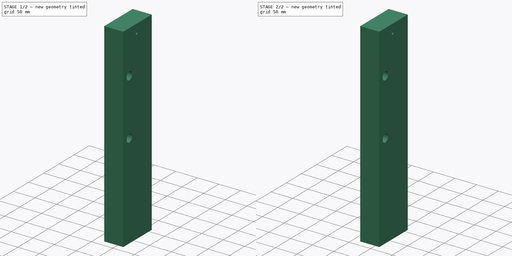
[diagram: build sequence overview — one tinted view per stage of 2, left to right]
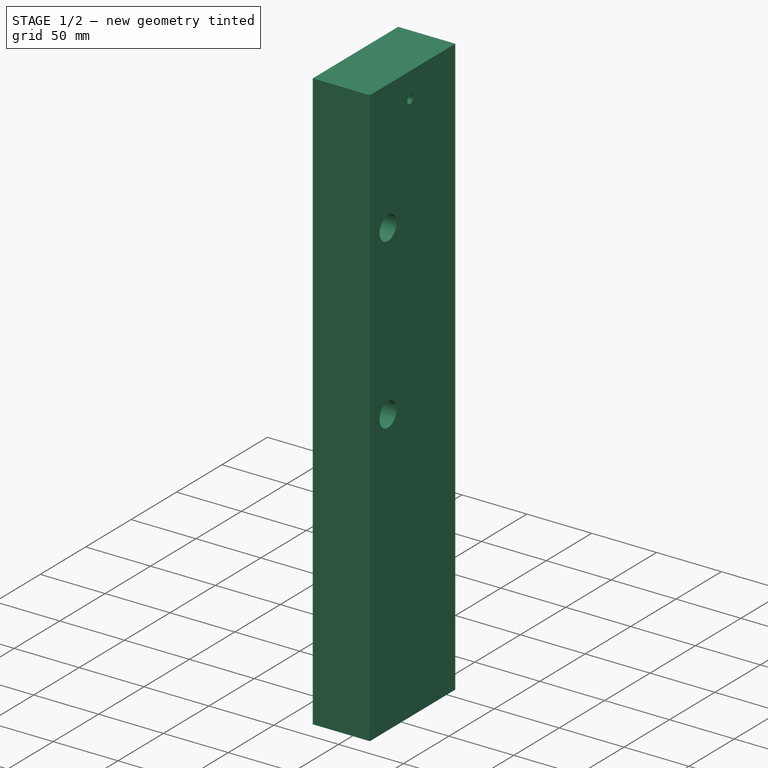
[diagram: stage 1 of 2 — iso view after this stage's code; geometry added in this stage tinted green]
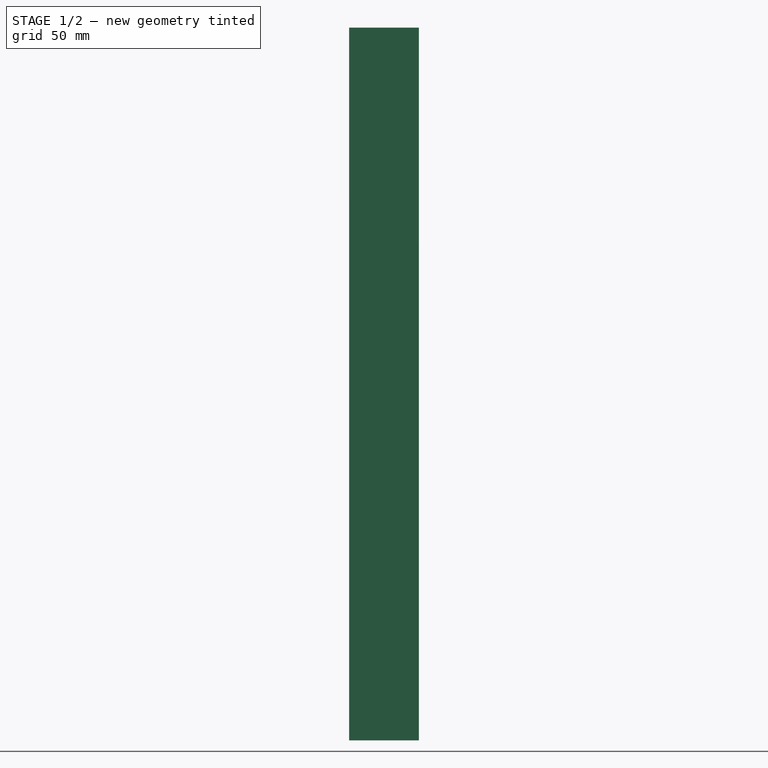
[diagram: stage 1 of 2 — front view after this stage's code; geometry added in this stage tinted green]
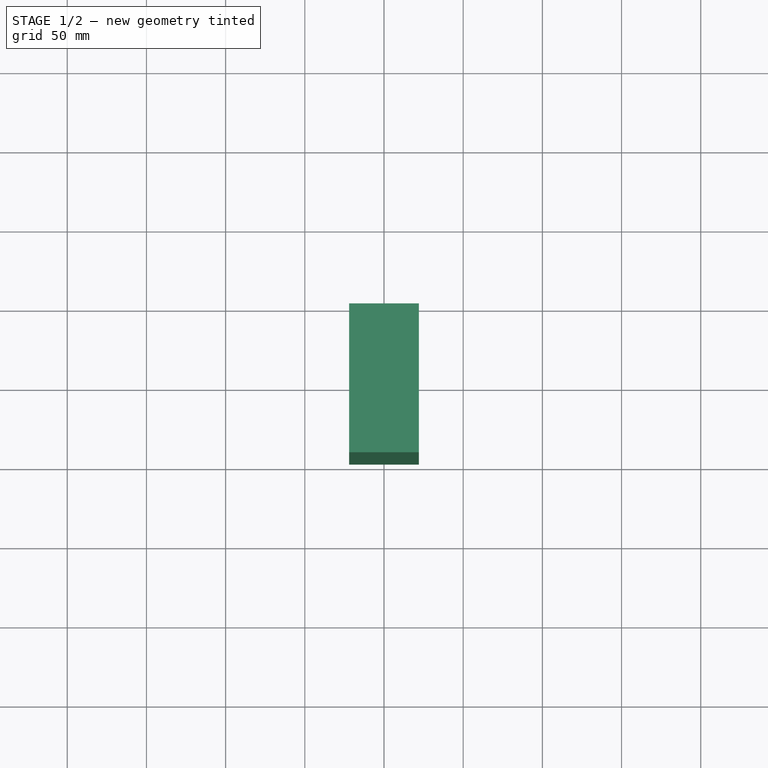
[diagram: stage 1 of 2 — top view after this stage's code; geometry added in this stage tinted green]
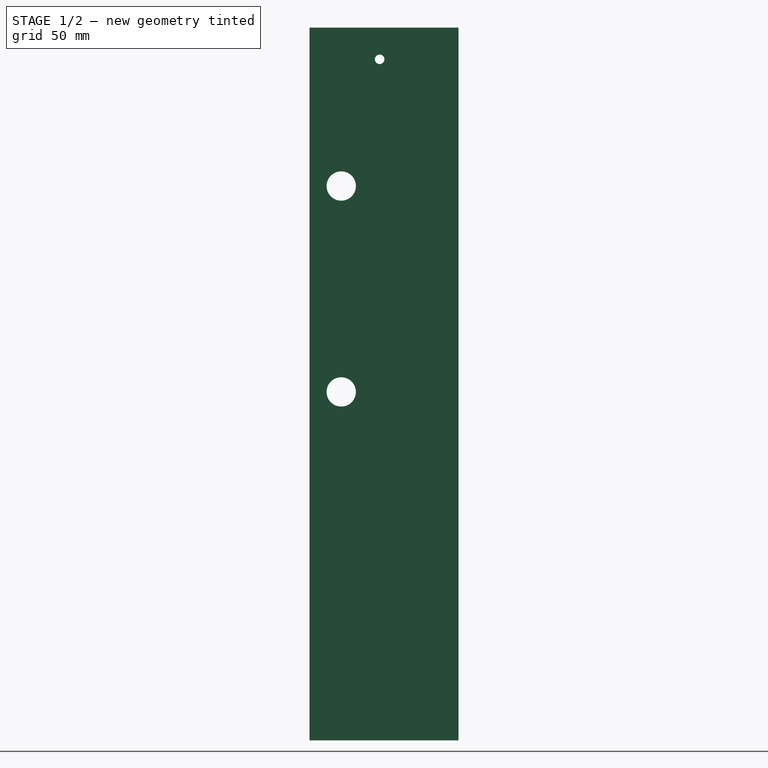
[diagram: stage 1 of 2 — right view after this stage's code; geometry added in this stage tinted green]
FCSTD DOCUMENT  (FreeCAD 0.19R18028 (Git))
Label: upper-stage-beam
License: Public Domain
LicenseURL: http://en.wikipedia.org/wiki/Public_domain
objects: Part::FeaturePython×17, App::FeaturePython×4, Sketcher::SketchObject×3, PartDesign::Pocket×2, PartDesign::Pad×1, PartDesign::Body×1, Part::Mirroring×1
note: 26 computed .brp shape members not serialized (recipe doc carries the construction recipe); baked Part::Feature solids carry a one-line shape summary decoded from their .brp

FEATURE [Sketcher::SketchObject] Sketch
  MapMode = 5
  Support = -> [XY_Plane]
  sketch-geometry (4):
    g0: LineSegment StartX=-22 StartY=-47 StartZ=0 EndX=22 EndY=-47 EndZ=0
    g1: LineSegment StartX=22 StartY=-47 StartZ=0 EndX=22 EndY=47 EndZ=0
    g2: LineSegment StartX=22 StartY=47 StartZ=0 EndX=-22 EndY=47 EndZ=0
    g3: LineSegment StartX=-22 StartY=47 StartZ=0 EndX=-22 EndY=-47 EndZ=0
  constraints (10):
    c: Coincident(g0,g1)
    c: Coincident(g1,g2)
    c: Coincident(g2,g3)
    c: Horizontal(g2)
    c: Vertical(g3)
    c: Distance(g0) = 44
    c: Distance(g1) = 94
    c: Symmetric(g0,g0,g-2)
    c: Coincident(g3,g0)
    c: Symmetric(g0,g1,g-1)
FEATURE [PartDesign::Pad] Pad
  ClaimChildren = false
  Length = 450
  Length2 = 100
  Profile = -> Sketch
  Type = 0
FEATURE [Sketcher::SketchObject] Sketch001
  ExternalGeometry = -> [Pad]
  MapMode = 5
  Placement = pos=(22,0,0) rot=(0.57735,0.57735,0.57735;2.0944rad)
  Support = -> [Pad]
  expr: Constraints[6] = 15 + 18.5 / 2
  sketch-geometry (3):
    g0: Circle CenterX=-27 CenterY=350 CenterZ=0 NormalX=0 NormalY=0 NormalZ=1 AngleXU=0 Radius=9.25
    g1: Circle CenterX=-27 CenterY=220 CenterZ=0 NormalX=0 NormalY=0 NormalZ=1 AngleXU=0 Radius=9.25
    g2: Circle CenterX=-2.75 CenterY=430 CenterZ=0 NormalX=0 NormalY=0 NormalZ=1 AngleXU=0 Radius=3
  constraints (9):
    c: Equal(g1,g0)
    c: Diameter(g0) = 18.5
    c: Vertical(g0,g1)
    c: DistanceY(g1,g0) = 130
    c: DistanceX(g-3,g0) = 20
    c: DistanceY(g0,g-3) = 100
    c: DistanceX(g0,g2) = 24.25
    c: DistanceY(g2,g-3) = 20
    c: Diameter(g2) = 6
FEATURE [PartDesign::Pocket] Pocket
  BaseFeature = -> Pad
  ClaimChildren = false
  Length = 5
  Length2 = 100
  Profile = -> Sketch001
  Type = 1
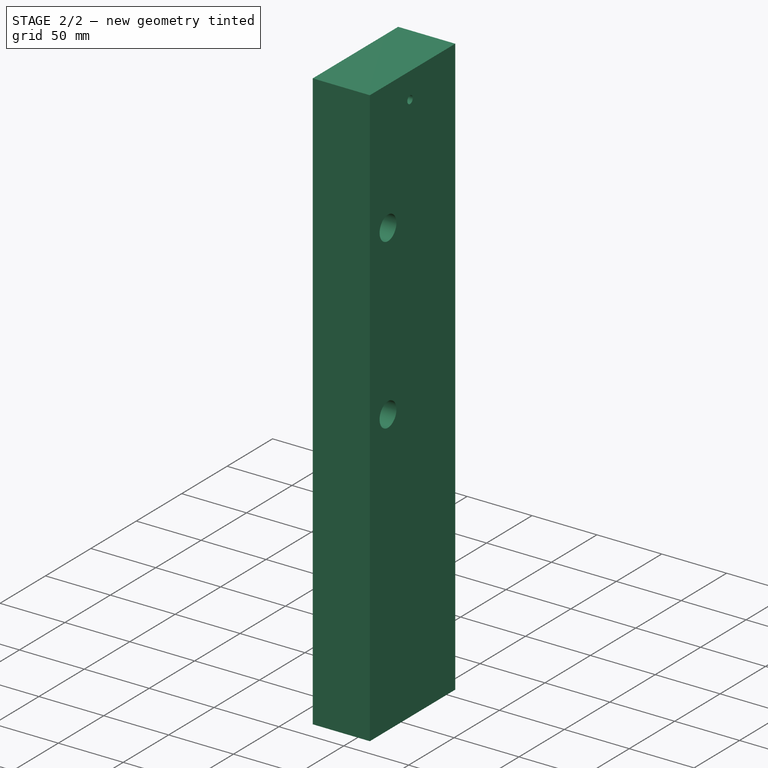
[diagram: stage 2 of 2 — iso view after this stage's code; geometry added in this stage tinted green]
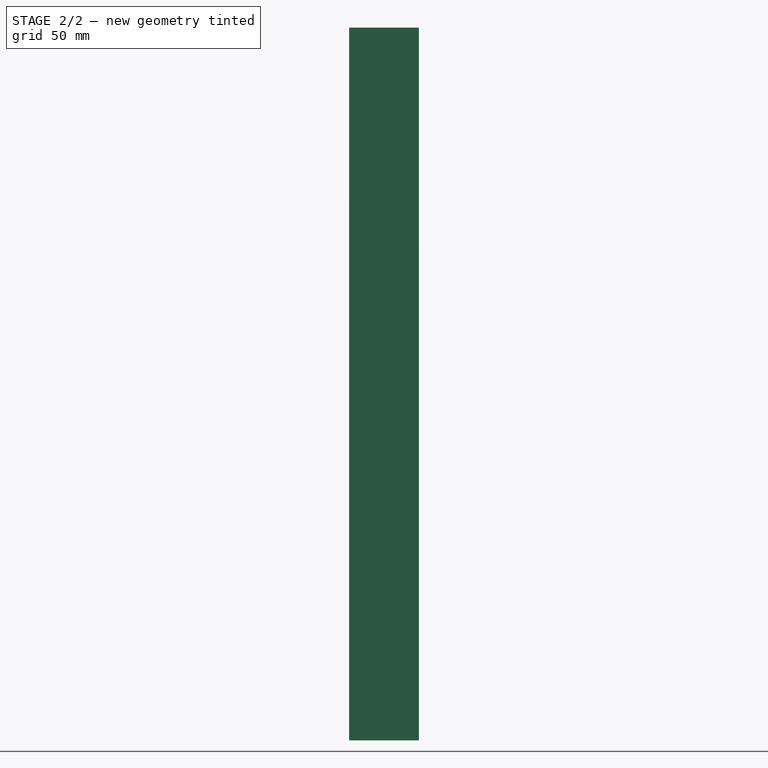
[diagram: stage 2 of 2 — front view after this stage's code; geometry added in this stage tinted green]
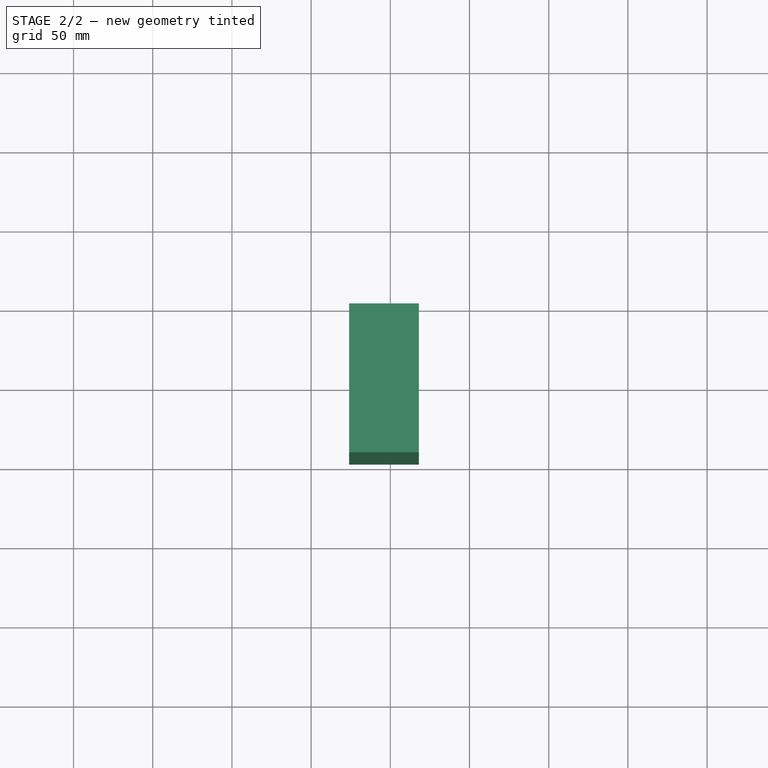
[diagram: stage 2 of 2 — top view after this stage's code; geometry added in this stage tinted green]
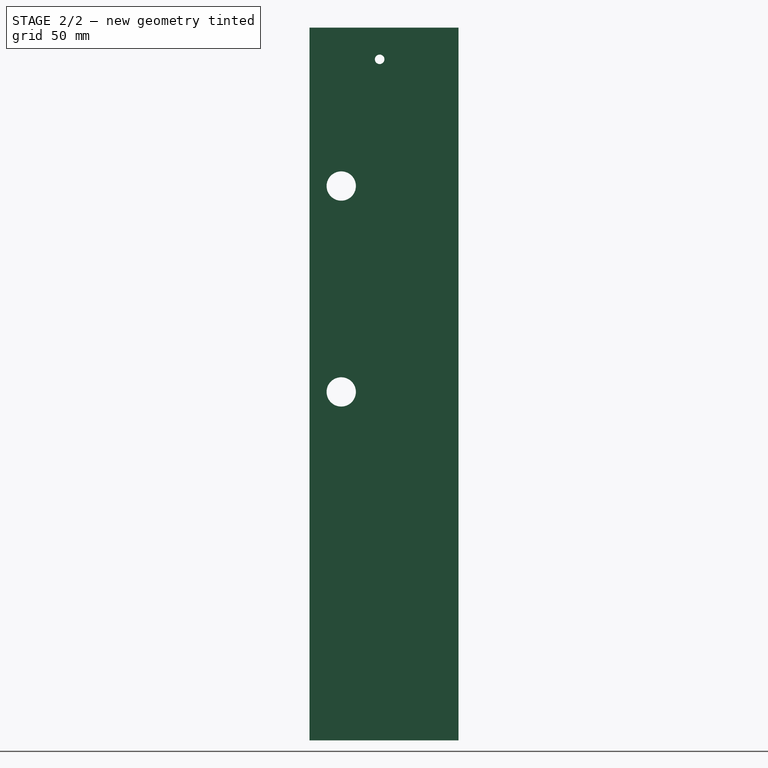
[diagram: stage 2 of 2 — right view after this stage's code; geometry added in this stage tinted green]
FEATURE [Sketcher::SketchObject] Sketch002
  ExternalGeometry = -> [Pocket]
  MapMode = 5
  Placement = pos=(22,0,0) rot=(0.57735,0.57735,0.57735;2.0944rad)
  Support = -> [Pocket]
  expr: Constraints[3] = 45 / 2
  sketch-geometry (3):
    g0: Circle CenterX=24.5 CenterY=425 CenterZ=0 NormalX=0 NormalY=0 NormalZ=1 AngleXU=0 Radius=1.5
    g1: Circle CenterX=24.5 CenterY=265 CenterZ=0 NormalX=0 NormalY=0 NormalZ=1 AngleXU=0 Radius=1.5
    g2: Circle CenterX=24.5 CenterY=73 CenterZ=0 NormalX=0 NormalY=0 NormalZ=1 AngleXU=0 Radius=1.5
  constraints (9):
    c: Equal(g2,g1)
    c: Equal(g1,g0)
    c: Diameter(g0) = 3
    c: DistanceX(g0,g-3) = 22.5
    c: DistanceY(g0,g-3) = 25
    c: Vertical(g0,g1)
    c: Vertical(g1,g2)
    c: DistanceY(g1,g0) = 160
    c: DistanceY(g2,g0) = 352
FEATURE [PartDesign::Pocket] Pocket001
  BaseFeature = -> Pocket
  ClaimChildren = false
  Length = 10
  Length2 = 100
  Profile = -> Sketch002
  Type = 0
FEATURE [PartDesign::Body] Body
  Group = -> [Sketch,Pad,Sketch001,Pocket,Sketch002,Pocket001]
  Origin = -> Origin
  SingleSolid = true
  Tip = -> Pocket001
FEATURE [Part::Mirroring] Part__Mirroring  label="Pocket001 (Mirror #1)"
  Base = (0,0,0)
  Normal = (1,0,0)
  Placement = pos=(246,0,0) rot=(0,0,1;0rad)
  Source = -> Pocket001
FEATURE [App::FeaturePython] Constraints  # WARN: FeaturePython — macro-defined, semantics opaque (R4)
  GroupMode = 1
  _Version = 1
FEATURE [Part::FeaturePython] Parts  # WARN: FeaturePython — macro-defined, semantics opaque (R4)
  Group = -> [Body]
  GroupMode = 0
FEATURE [App::FeaturePython] Constraints001  # WARN: FeaturePython — macro-defined, semantics opaque (R4)
  GroupMode = 1
  _Version = 1
FEATURE [Part::FeaturePython] Parts001  # WARN: FeaturePython — macro-defined, semantics opaque (R4)
  Group = -> [Part__Mirroring]
  GroupMode = 0
FEATURE [Part::FeaturePython] Assembly  label="upper-stage-beam-left"  # WARN: FeaturePython — macro-defined, semantics opaque (R4)
  AutoRelax = true
  BuildShape = 0
  Freeze = false
  Group = -> [Constraints,Elements,Parts]
  GroupMode = 1
  SolverType = 1
  Verbose = false
  _SolverType = 1
  _Version = 1
FEATURE [App::FeaturePython] Elements  # WARN: FeaturePython — macro-defined, semantics opaque (R4)
  Group = -> [Element,Element001,Element003,Element004,Element005,Element006,Element013]
  GroupMode = 1
FEATURE [Part::FeaturePython] Assembly001  label="upper-stage-beam-right"  # WARN: FeaturePython — macro-defined, semantics opaque (R4)
  AutoRelax = true
  BuildShape = 0
  Freeze = false
  Group = -> [Constraints001,Elements001,Parts001]
  GroupMode = 1
  SolverType = 1
  Verbose = false
  _SolverType = 1
  _Version = 1
FEATURE [App::FeaturePython] Elements001  # WARN: FeaturePython — macro-defined, semantics opaque (R4)
  Group = -> [Element007,Element008,Element009,Element010,Element011,Element012]
  GroupMode = 1
FEATURE [Part::FeaturePython] Element  label="tv_rod_hole_top"  # link proxy (typed FeaturePython)
  Detach = false
  LinkTransform = true
  LinkedObject = -> Body [Pocket.Sketch001.Edge1]
  _Parent = -> Elements
FEATURE [Part::FeaturePython] Element001  label="tv_rod_hole_bottom"  # link proxy (typed FeaturePython)
  Detach = false
  LinkTransform = true
  LinkedObject = -> Body [Pocket.Sketch001.Edge2]
  _Parent = -> Elements
FEATURE [Part::FeaturePython] Element003  label="rail_hole_top"  # link proxy (typed FeaturePython)
  Detach = false
  LinkTransform = true
  LinkedObject = -> Body [Pocket001.Sketch002.Edge1]
  _Parent = -> Elements
FEATURE [Part::FeaturePython] Element004  label="rail-hole-middle"  # link proxy (typed FeaturePython)
  Detach = false
  LinkTransform = true
  LinkedObject = -> Body [Pocket001.Sketch002.Edge2]
  _Parent = -> Elements
FEATURE [Part::FeaturePython] Element005  label="rail_hole_bottom"  # link proxy (typed FeaturePython)
  Detach = false
  LinkTransform = true
  LinkedObject = -> Body [Pocket001.Sketch002.Edge3]
  _Parent = -> Elements
FEATURE [Part::FeaturePython] Element006  label="actuator_rod_hole"  # link proxy (typed FeaturePython)
  Detach = false
  LinkTransform = true
  LinkedObject = -> Body [Pocket.Sketch001.Edge3]
  _Parent = -> Elements
FEATURE [Part::FeaturePython] Element007  label="tv_rod_hole_top"  # link proxy (typed FeaturePython)
  Detach = false
  LinkTransform = true
  LinkedObject = -> Part__Mirroring [Edge18]
  _Parent = -> Elements001
FEATURE [Part::FeaturePython] Element008  label="tv_rod_hole_bottom"  # link proxy (typed FeaturePython)
  Detach = false
  LinkTransform = true
  LinkedObject = -> Part__Mirroring [Edge14]
  _Parent = -> Elements001
FEATURE [Part::FeaturePython] Element009  label="actuator_rod_hole"  # link proxy (typed FeaturePython)
  Detach = false
  LinkTransform = true
  LinkedObject = -> Part__Mirroring [Edge19]
  _Parent = -> Elements001
FEATURE [Part::FeaturePython] Element010  label="rail_hole_top"  # link proxy (typed FeaturePython)
  Detach = false
  LinkTransform = true
  LinkedObject = -> Part__Mirroring [Edge16]
  _Parent = -> Elements001
FEATURE [Part::FeaturePython] Element011  label="rail_hole_middle"  # link proxy (typed FeaturePython)
  Detach = false
  LinkTransform = true
  LinkedObject = -> Part__Mirroring [Edge17]
  _Parent = -> Elements001
FEATURE [Part::FeaturePython] Element012  label="rail_hole_bottom"  # link proxy (typed FeaturePython)
  Detach = false
  LinkTransform = true
  LinkedObject = -> Part__Mirroring [Edge15]
  _Parent = -> Elements001
FEATURE [Part::FeaturePython] Element013  label="base_edge"  # link proxy (typed FeaturePython)
  Detach = false
  LinkTransform = true
  LinkedObject = -> Body [Pad.Sketch.Edge4]
  _Parent = -> Elements
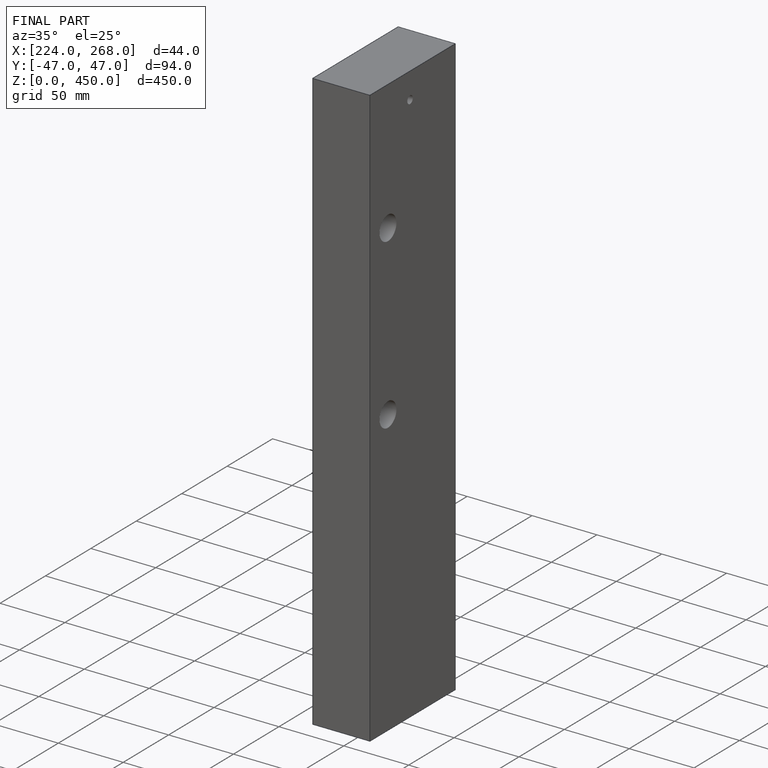
[diagram: finished part — iso view with bounding-box wireframe]
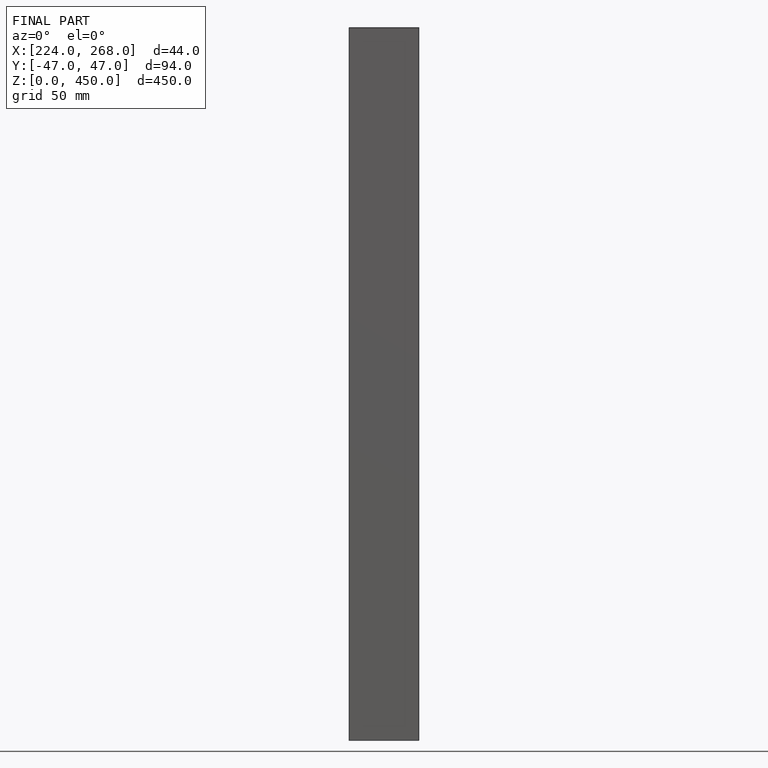
[diagram: finished part — front view with bounding-box wireframe]
